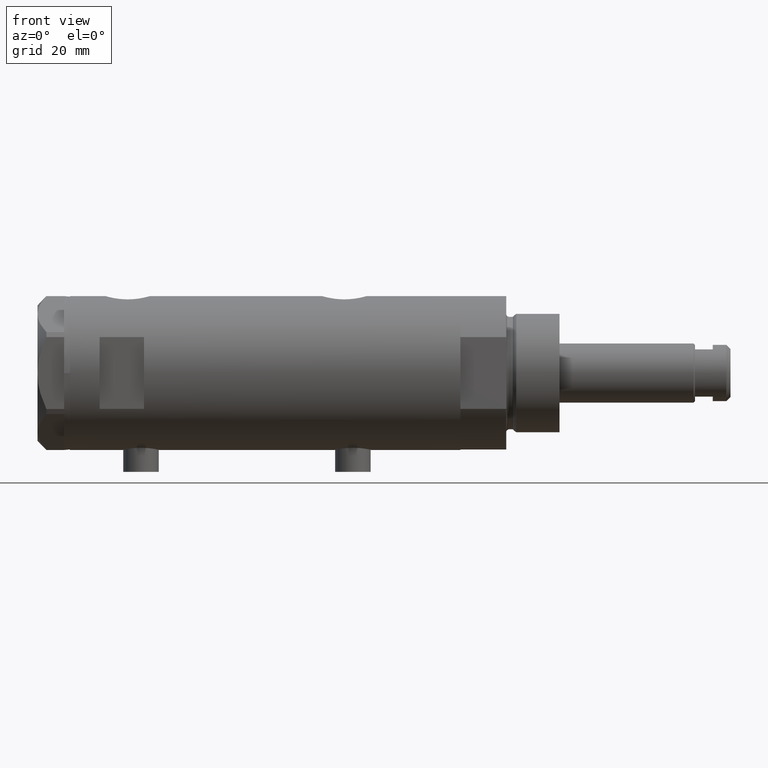
[diagram: clean part render]
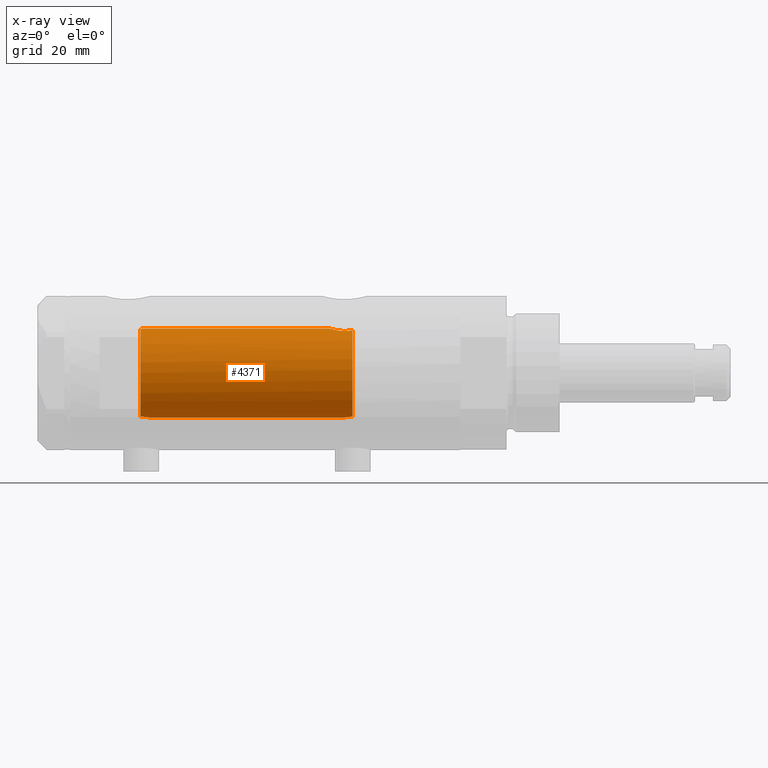
[diagram: x-ray — body ghosted, one internal face saturated and labeled with its STEP entity id]
A machine part, front view, then the same camera in x-ray: the body is ghosted and one INTERNAL B-rep face — a face not visible from any outside direction — is saturated and labeled: STEP entity #4371.
In plain terms, the highlighted cylindrical surface (partial cylindrical patch) has radius 15 mm, axis along (1, 0, -0).
Its self-contained STEP definition (entity closure, byte-faithful):
#108 = CARTESIAN_POINT ( 'NONE',  ( -14.87260732106556560, -1.954338522023925773, 40.38146298750768892 ) ) ;
#119 = VECTOR ( 'NONE', #4048, 1000.000000000000000 ) ;
#139 = CARTESIAN_POINT ( 'NONE',  ( -15.00000000000000000, 0.000000000000000000, 65.95000000000000284 ) ) ;
#161 = DIRECTION ( 'NONE',  ( -1.000000000000000000, 0.000000000000000000, 0.000000000000000000 ) ) ;
#237 = CARTESIAN_POINT ( 'NONE',  ( 14.96064712090283777, -1.106639041422191605, -22.00738179736371691 ) ) ;
#245 = VERTEX_POINT ( 'NONE', #4715 ) ;
#294 = CARTESIAN_POINT ( 'NONE',  ( 14.23846660849503465, -4.718934182878723682, -27.95401121469808814 ) ) ;
#307 = CYLINDRICAL_SURFACE ( 'NONE', #2910, 15.00000000000000000 ) ;
#308 = CARTESIAN_POINT ( 'NONE',  ( -15.00000000000000711, -0.1613061104920439637, -27.15000000000000568 ) ) ;
#316 = CARTESIAN_POINT ( 'NONE',  ( 14.72015646623405871, -2.909233045280604113, -22.82572079632733875 ) ) ;
#340 = CARTESIAN_POINT ( 'NONE',  ( 14.18781489734108270, -4.868896704194245473, -26.85545969036062175 ) ) ;
#381 = ORIENTED_EDGE ( 'NONE', *, *, #406, .F. ) ;
#406 = EDGE_CURVE ( 'NONE', #245, #1940, #3531, .T. ) ;
#475 = B_SPLINE_CURVE_WITH_KNOTS ( 'NONE', 3,
 ( #1950, #308, #3560, #5162, #4800, #3163, #3925, #4694, #1115, #2371, #2718, #4315, #1087, #3968, #1926, #3594 ),
 .UNSPECIFIED., .F., .F.,
 ( 4, 2, 2, 2, 2, 2, 2, 4 ),
 ( 9.232380109166849670E-20, 0.0004769863284873123192, 0.0009539726569746245300, 0.001430958985461936632, 0.001907945313949248843, 0.002384931642436560837, 0.002861917970923873698, 0.003815890627898489013 ),
 .UNSPECIFIED. ) ;
#480 = CARTESIAN_POINT ( 'NONE',  ( 15.00000000000000000, 5.959273468635536151E-16, -21.88500000000000156 ) ) ;
#555 = CARTESIAN_POINT ( 'NONE',  ( 14.46277203719950677, -3.978470183374504199, -29.55000000000000782 ) ) ;
#567 = CARTESIAN_POINT ( 'NONE',  ( 14.87720562886504538, -1.924385875533401125, 41.97741675737692901 ) ) ;
#620 = CARTESIAN_POINT ( 'NONE',  ( 14.98404828787190191, -0.7909490205761877668, 41.63356230794191504 ) ) ;
#697 = AXIS2_PLACEMENT_3D ( 'NONE', #2424, #5126, #4916 ) ;
#701 = EDGE_CURVE ( 'NONE', #3066, #1050, #4973, .T. ) ;
#761 = CARTESIAN_POINT ( 'NONE',  ( 0.000000000000000000, 0.000000000000000000, 65.95000000000000284 ) ) ;
#792 = CIRCLE ( 'NONE', #697, 15.00000000000000000 ) ;
#822 = CARTESIAN_POINT ( 'NONE',  ( 15.00000000000000178, -0.3999014018875941545, 41.58500000000000796 ) ) ;
#925 = CARTESIAN_POINT ( 'NONE',  ( -14.99695275358354252, -0.3460123648701027288, 39.46810396824250233 ) ) ;
#969 = EDGE_CURVE ( 'NONE', #4922, #2412, #4987, .T. ) ;
#981 = CARTESIAN_POINT ( 'NONE',  ( -14.98541608527170332, -0.6823644196029130526, 39.53879464417551759 ) ) ;
#1050 = VERTEX_POINT ( 'NONE', #2096 ) ;
#1087 = CARTESIAN_POINT ( 'NONE',  ( -14.83575030094399771, -2.214690538106014017, -28.47938890130203404 ) ) ;
#1097 = CARTESIAN_POINT ( 'NONE',  ( 14.30772250772360188, -4.505024017690379523, -24.90010806953217681 ) ) ;
#1115 = CARTESIAN_POINT ( 'NONE',  ( -14.91288509639097803, -1.618377549727004316, -27.73790984008952876 ) ) ;
#1126 = CARTESIAN_POINT ( 'NONE',  ( 14.93900636919599911, -1.364886281976677163, 41.77622504971314044 ) ) ;
#1154 = CARTESIAN_POINT ( 'NONE',  ( 14.20926245015526135, -4.806160851464704287, -25.96377327795615031 ) ) ;
#1213 = CARTESIAN_POINT ( 'NONE',  ( 15.00000000000000000, 0.000000000000000000, 41.58500000000000085 ) ) ;
#1223 = CARTESIAN_POINT ( 'NONE',  ( -14.94313933514151849, -1.312299271472199491, 39.81526966946924517 ) ) ;
#1393 = VERTEX_POINT ( 'NONE', #480 ) ;
#1497 = CARTESIAN_POINT ( 'NONE',  ( 14.33349657381506681, -4.422893686125039636, -28.78827841538882737 ) ) ;
#1521 = CARTESIAN_POINT ( 'NONE',  ( 14.99508877558422704, -0.4434836953032585405, -21.90007684727664738 ) ) ;
#1788 = ORIENTED_EDGE ( 'NONE', *, *, #4869, .F. ) ;
#1789 = CARTESIAN_POINT ( 'NONE',  ( -14.97699254061832796, -0.8454257663520248212, 39.59097868826835054 ) ) ;
#1820 = CARTESIAN_POINT ( 'NONE',  ( -15.00000000000000000, 0.000000000000000000, -27.15000000000000568 ) ) ;
#1855 = CARTESIAN_POINT ( 'NONE',  ( 14.30602371879161439, -4.510400617436905790, -28.58665028800271557 ) ) ;
#1900 = EDGE_CURVE ( 'NONE', #2498, #1050, #475, .T. ) ;
#1926 = CARTESIAN_POINT ( 'NONE',  ( -14.79268570220017409, -2.485279885960841817, -29.23227165314100517 ) ) ;
#1932 = EDGE_CURVE ( 'NONE', #3066, #1393, #2432, .T. ) ;
#1936 = CARTESIAN_POINT ( 'NONE',  ( 14.42775250319760083, -4.105775281508736718, -29.36911445102908402 ) ) ;
#1940 = VERTEX_POINT ( 'NONE', #3091 ) ;
#1950 = CARTESIAN_POINT ( 'NONE',  ( -15.00000000000000000, 0.000000000000000000, -27.15000000000000568 ) ) ;
#1960 = CARTESIAN_POINT ( 'NONE',  ( 15.00000000000000000, 5.959273468635536151E-16, -21.88500000000000156 ) ) ;
#2004 = CARTESIAN_POINT ( 'NONE',  ( -14.90147761301467710, -1.720422196468683440, 40.12794212931562043 ) ) ;
#2096 = CARTESIAN_POINT ( 'NONE',  ( -14.79053751558745944, -2.497999199359361544, -29.55000000000000782 ) ) ;
#2108 = CARTESIAN_POINT ( 'NONE',  ( -14.82167156606024783, -2.306788152106016287, 40.97115114601642460 ) ) ;
#2254 = CARTESIAN_POINT ( 'NONE',  ( 14.19797987272029438, -4.839174951492910104, -27.29741451501410765 ) ) ;
#2278 = CARTESIAN_POINT ( 'NONE',  ( 14.46277203719950677, -3.978470183374504199, -29.55000000000000782 ) ) ;
#2307 = CARTESIAN_POINT ( 'NONE',  ( 14.23984499268010673, -4.714778477509576682, -25.53008258614764259 ) ) ;
#2334 = CARTESIAN_POINT ( 'NONE',  ( 14.25977760983849230, -4.654557688538887739, -25.31736805897652687 ) ) ;
#2357 = CARTESIAN_POINT ( 'NONE',  ( 14.19858338301463085, -4.837406781463695182, -26.18614104090499239 ) ) ;
#2371 = CARTESIAN_POINT ( 'NONE',  ( -14.88625129008227077, -1.847379311388060108, -27.95812992433160105 ) ) ;
#2399 = CARTESIAN_POINT ( 'NONE',  ( -14.78924132900106869, -2.505700361584525471, 41.97913437470933218 ) ) ;
#2412 = VERTEX_POINT ( 'NONE', #5060 ) ;
#2424 = CARTESIAN_POINT ( 'NONE',  ( 0.000000000000000000, 0.000000000000000000, 42.15000000000000568 ) ) ;
#2432 = B_SPLINE_CURVE_WITH_KNOTS ( 'NONE', 3,
 ( #2278, #1936, #2700, #1497, #1855, #3492, #294, #4762, #2254, #340, #2680, #2357, #1154, #2307, #2334, #1097, #3908, #3172, #4274, #3931, #316, #4786, #3069, #3573, #5098, #237, #3953, #1521, #3144, #1960 ),
 .UNSPECIFIED., .F., .F.,
 ( 4, 2, 2, 2, 2, 2, 2, 2, 2, 2, 2, 2, 2, 2, 4 ),
 ( 0.004672505804584291961, 0.005337629501999298885, 0.006002753199414305810, 0.006667876896829313602, 0.007333000594244319659, 0.007998124291659327451, 0.008663247989074335242, 0.009328371686489341300, 0.009993495383904347357, 0.01132374277873436988, 0.01265399017356439067, 0.01331911387097940366, 0.01398423756839441666, 0.01464936126580942966, 0.01531448496322444265 ),
 .UNSPECIFIED. ) ;
#2452 = LINE ( 'NONE', #4504, #119 ) ;
#2498 = VERTEX_POINT ( 'NONE', #1820 ) ;
#2529 = ORIENTED_EDGE ( 'NONE', *, *, #1900, .F. ) ;
#2586 = CARTESIAN_POINT ( 'NONE',  ( -15.00000000000000355, -0.1716226368084263487, 39.45000000000001705 ) ) ;
#2674 = EDGE_CURVE ( 'NONE', #4922, #1940, #792, .T. ) ;
#2680 = CARTESIAN_POINT ( 'NONE',  ( 14.18786347641749757, -4.868757996482117711, -26.63322300400293585 ) ) ;
#2700 = CARTESIAN_POINT ( 'NONE',  ( 14.39424372609267522, -4.221002267729139668, -29.17893131093289583 ) ) ;
#2718 = CARTESIAN_POINT ( 'NONE',  ( -14.87290636797879806, -1.950714596786577326, -28.07831246618854237 ) ) ;
#2830 = CARTESIAN_POINT ( 'NONE',  ( -14.83314878996174357, -2.232849285003168482, 40.81256080311607803 ) ) ;
#2908 = CARTESIAN_POINT ( 'NONE',  ( -14.79155164274525980, -2.491987158875424768, 42.15000000000000568 ) ) ;
#2910 = AXIS2_PLACEMENT_3D ( 'NONE', #761, #3132, #3967 ) ;
#2914 = DIRECTION ( 'NONE',  ( 0.000000000000000000, 0.000000000000000000, -1.000000000000000000 ) ) ;
#2929 = CARTESIAN_POINT ( 'NONE',  ( -15.00000000000000000, 3.061618115923464028E-16, 39.45000000000000284 ) ) ;
#2954 = DIRECTION ( 'NONE',  ( -0.000000000000000000, -0.000000000000000000, -1.000000000000000000 ) ) ;
#2976 = CARTESIAN_POINT ( 'NONE',  ( -14.95581892566389115, -1.161262481484112152, 39.72937042154403287 ) ) ;
#3066 = VERTEX_POINT ( 'NONE', #555 ) ;
#3069 = CARTESIAN_POINT ( 'NONE',  ( 14.84733308118440398, -2.144376633039214219, -22.37751912952715116 ) ) ;
#3091 = CARTESIAN_POINT ( 'NONE',  ( 14.82638779339053769, -2.275571356824481750, 42.15000000000000568 ) ) ;
#3132 = DIRECTION ( 'NONE',  ( -0.000000000000000000, -0.000000000000000000, -1.000000000000000000 ) ) ;
#3144 = CARTESIAN_POINT ( 'NONE',  ( 15.00000000000000000, -0.2216692655473424256, -21.88500000000000156 ) ) ;
#3149 = EDGE_LOOP ( 'NONE', ( #381, #3343, #4415, #3360, #2529, #1788, #4675, #3306 ) ) ;
#3163 = CARTESIAN_POINT ( 'NONE',  ( -14.96154495298569032, -1.083625483837068026, -27.39138979525010598 ) ) ;
#3172 = CARTESIAN_POINT ( 'NONE',  ( 14.42796883436190569, -4.108435602805831977, -24.10726922759031510 ) ) ;
#3306 = ORIENTED_EDGE ( 'NONE', *, *, #2674, .T. ) ;
#3317 = EDGE_CURVE ( 'NONE', #245, #1393, #2452, .T. ) ;
#3319 = CARTESIAN_POINT ( 'NONE',  ( -14.80379558280398555, -2.418854260473059625, 41.29535450491658821 ) ) ;
#3343 = ORIENTED_EDGE ( 'NONE', *, *, #3317, .T. ) ;
#3360 = ORIENTED_EDGE ( 'NONE', *, *, #701, .T. ) ;
#3384 = CARTESIAN_POINT ( 'NONE',  ( 14.92029983160078466, -1.555365312915176323, 41.83609703141412695 ) ) ;
#3492 = CARTESIAN_POINT ( 'NONE',  ( 14.25856516724843814, -4.658255869285517825, -28.17044016644937798 ) ) ;
#3531 = B_SPLINE_CURVE_WITH_KNOTS ( 'NONE', 3,
 ( #1213, #822, #620, #1126, #3384, #567, #4608, #3785 ),
 .UNSPECIFIED., .F., .F.,
 ( 4, 2, 2, 4 ),
 ( 2.641598245732904660E-19, 0.001182100180564266394, 0.001773150270846399592, 0.002364200361128532789 ),
 .UNSPECIFIED. ) ;
#3560 = CARTESIAN_POINT ( 'NONE',  ( -14.99740058099025930, -0.3199290537848247240, -27.16546469274587139 ) ) ;
#3573 = CARTESIAN_POINT ( 'NONE',  ( 14.90017778876745069, -1.739641523727900596, -22.20130925695126578 ) ) ;
#3594 = CARTESIAN_POINT ( 'NONE',  ( -14.79053751558745944, -2.497999199359361544, -29.55000000000000782 ) ) ;
#3659 = VECTOR ( 'NONE', #2954, 1000.000000000000000 ) ;
#3701 = CARTESIAN_POINT ( 'NONE',  ( -14.78989771875219539, -2.501882951377200737, 41.80631597653684395 ) ) ;
#3723 = CARTESIAN_POINT ( 'NONE',  ( -14.85859683553260346, -2.056701007386132041, 40.51843972450896558 ) ) ;
#3726 = CARTESIAN_POINT ( 'NONE',  ( -14.79155164274525980, -2.491987158875424768, 42.15000000000000568 ) ) ;
#3728 = CARTESIAN_POINT ( 'NONE',  ( 0.000000000000000000, 0.000000000000000000, -29.55000000000000782 ) ) ;
#3785 = CARTESIAN_POINT ( 'NONE',  ( 14.82638779339053769, -2.275571356824481750, 42.15000000000000568 ) ) ;
#3908 = CARTESIAN_POINT ( 'NONE',  ( 14.33594561531103473, -4.414979644548147952, -24.69453393419243525 ) ) ;
#3925 = CARTESIAN_POINT ( 'NONE',  ( -14.95054302956255121, -1.224431043437662625, -27.46458290830104332 ) ) ;
#3931 = CARTESIAN_POINT ( 'NONE',  ( 14.64727859494137263, -3.248701865452403581, -23.10174013696655493 ) ) ;
#3953 = CARTESIAN_POINT ( 'NONE',  ( 14.97537530859971966, -0.8874117095427782598, -21.96137464055828659 ) ) ;
#3967 = DIRECTION ( 'NONE',  ( -1.000000000000000000, 0.000000000000000000, 0.000000000000000000 ) ) ;
#3968 = CARTESIAN_POINT ( 'NONE',  ( -14.80570803900863908, -2.410056876876584209, -28.91354637206099198 ) ) ;
#4048 = DIRECTION ( 'NONE',  ( -0.000000000000000000, -0.000000000000000000, -1.000000000000000000 ) ) ;
#4103 = CARTESIAN_POINT ( 'NONE',  ( -14.79723843696374885, -2.458094276708261638, 41.46231574989083413 ) ) ;
#4274 = CARTESIAN_POINT ( 'NONE',  ( 14.49994286062941207, -3.853373987417221702, -23.74743896782911889 ) ) ;
#4285 = LINE ( 'NONE', #139, #3659 ) ;
#4311 = FACE_OUTER_BOUND ( 'NONE', #3149, .T. ) ;
#4315 = CARTESIAN_POINT ( 'NONE',  ( -14.84760220014584498, -2.134792770974418108, -28.33921818480346388 ) ) ;
#4371 = ADVANCED_FACE ( 'NONE', ( #4311 ), #307, .F. ) ;
#4415 = ORIENTED_EDGE ( 'NONE', *, *, #1932, .F. ) ;
#4504 = CARTESIAN_POINT ( 'NONE',  ( 15.00000000000000000, 1.836970198721029194E-15, 65.95000000000000284 ) ) ;
#4608 = CARTESIAN_POINT ( 'NONE',  ( 14.85289483991917336, -2.102865829523694607, 42.05860377881607093 ) ) ;
#4675 = ORIENTED_EDGE ( 'NONE', *, *, #969, .F. ) ;
#4694 = CARTESIAN_POINT ( 'NONE',  ( -14.92627313122705779, -1.491421694539937226, -27.63730514635740221 ) ) ;
#4715 = CARTESIAN_POINT ( 'NONE',  ( 15.00000000000000000, 0.000000000000000000, 41.58500000000000085 ) ) ;
#4762 = CARTESIAN_POINT ( 'NONE',  ( 14.20819413761015326, -4.809312895991455505, -27.51713251522166459 ) ) ;
#4786 = CARTESIAN_POINT ( 'NONE',  ( 14.81710879718117724, -2.343063746046469387, -22.48067662538953826 ) ) ;
#4800 = CARTESIAN_POINT ( 'NONE',  ( -14.98007298506453111, -0.7870736506658164711, -27.27174868555715648 ) ) ;
#4826 = CARTESIAN_POINT ( 'NONE',  ( -14.91608554980932055, -1.590576762727819116, 40.01369720243329198 ) ) ;
#4869 = EDGE_CURVE ( 'NONE', #2412, #2498, #4285, .T. ) ;
#4916 = DIRECTION ( 'NONE',  ( 1.000000000000000000, 0.000000000000000000, 0.000000000000000000 ) ) ;
#4922 = VERTEX_POINT ( 'NONE', #3726 ) ;
#4973 = CIRCLE ( 'NONE', #5059, 15.00000000000000000 ) ;
#4987 = B_SPLINE_CURVE_WITH_KNOTS ( 'NONE', 3,
 ( #2908, #2399, #3701, #4103, #3319, #2108, #2830, #3723, #108, #2004, #4826, #1223, #2976, #1789, #981, #925, #2586, #2929 ),
 .UNSPECIFIED., .F., .F.,
 ( 4, 2, 2, 2, 2, 2, 2, 2, 4 ),
 ( 0.003715686714229632630, 0.004229951999599991345, 0.004744217284970349627, 0.005258482570340707908, 0.005772747855711066189, 0.006287013141081424471, 0.006801278426451782752, 0.007315543711822141033, 0.007829808997192499315 ),
 .UNSPECIFIED. ) ;
#5059 = AXIS2_PLACEMENT_3D ( 'NONE', #3728, #2914, #161 ) ;
#5060 = CARTESIAN_POINT ( 'NONE',  ( -15.00000000000000000, 3.061618115923464028E-16, 39.45000000000000284 ) ) ;
#5098 = CARTESIAN_POINT ( 'NONE',  ( 14.92307637240703677, -1.532123959568890248, -22.12726557582076126 ) ) ;
#5126 = DIRECTION ( 'NONE',  ( 0.000000000000000000, 0.000000000000000000, 1.000000000000000000 ) ) ;
#5162 = CARTESIAN_POINT ( 'NONE',  ( -14.98749134158487095, -0.6320459414166007539, -27.22599747929445257 ) ) ;